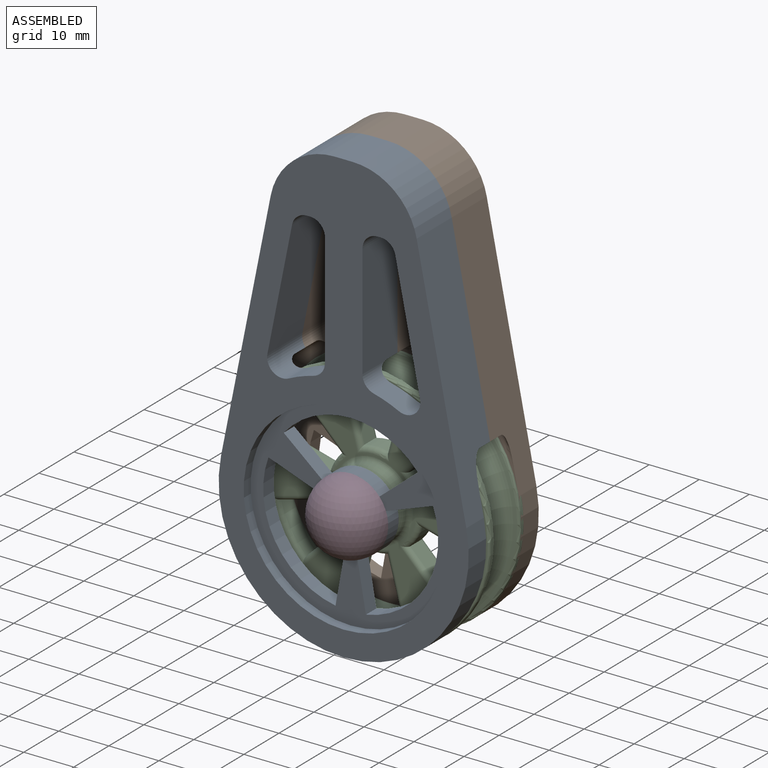
[diagram: assembled view]
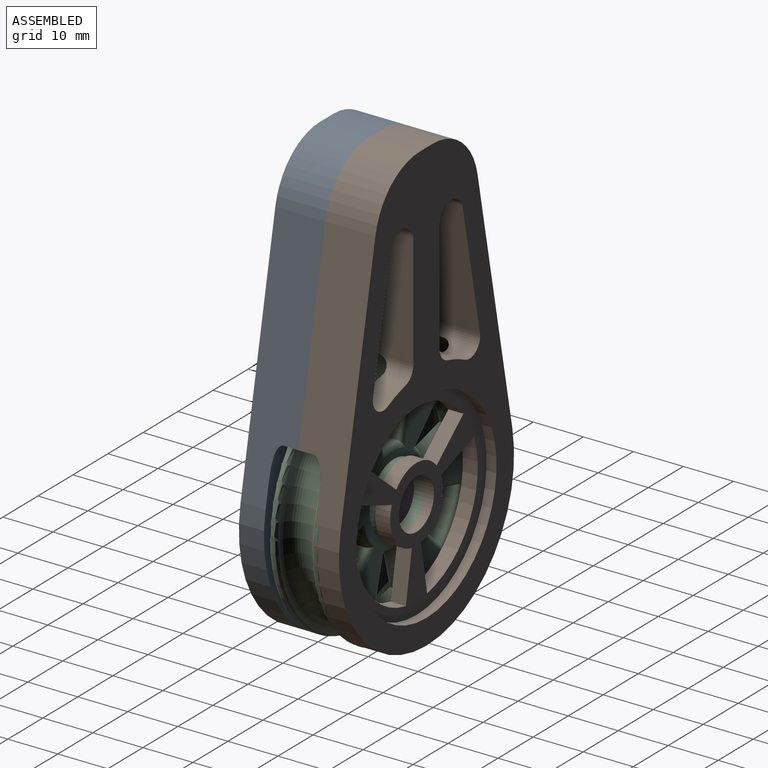
[diagram: assembled view, second angle]
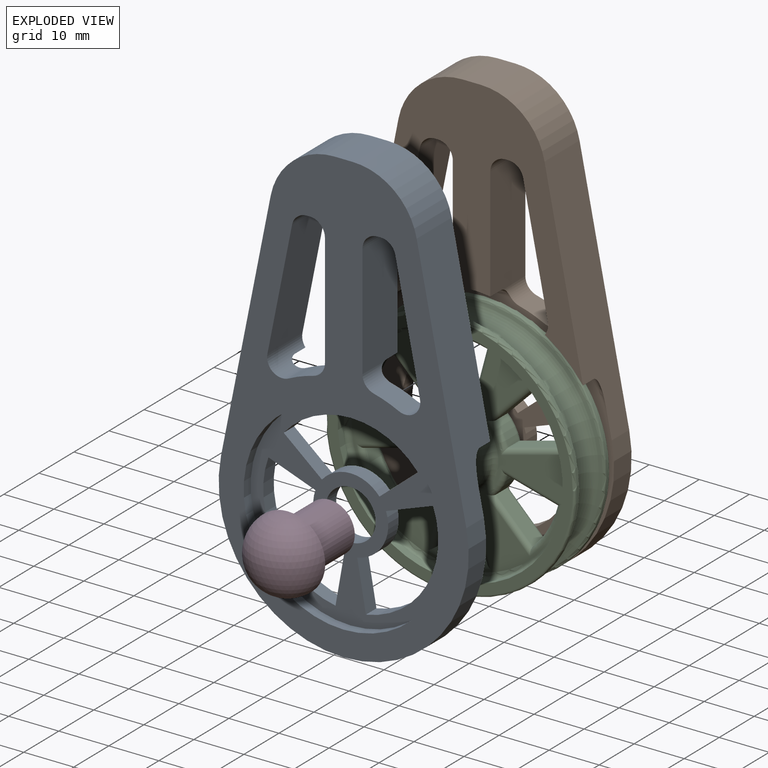
[diagram: exploded view]
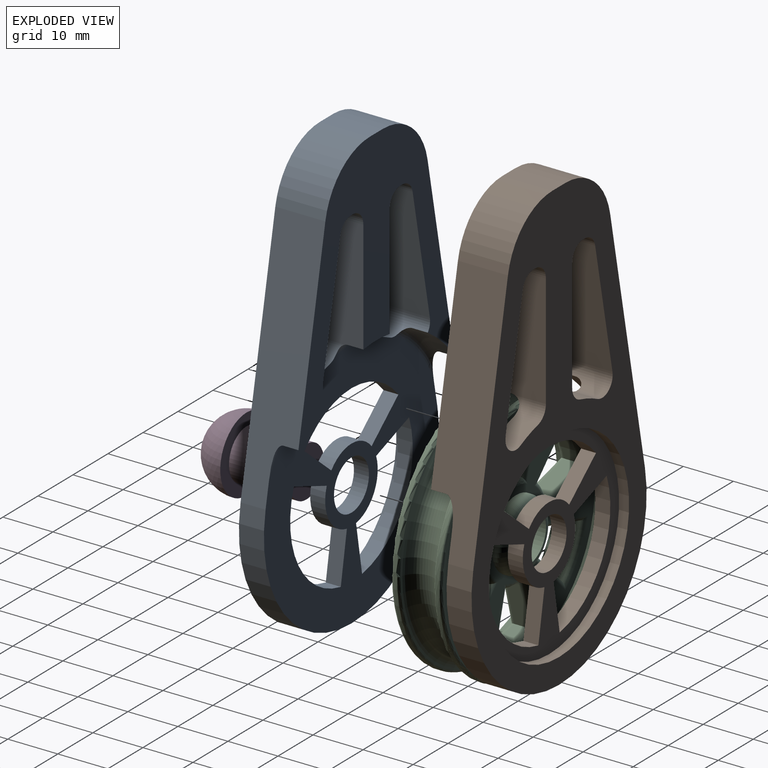
[diagram: exploded view, second angle]
ASSEMBLY  parts=4 mates=3
PART A: 46 faces, bbox 54.9x10x90 mm
  f0: plane 90x50mm, normal (0,-1,0), area 1625.2mm2, adj f7,f8,f9,f10,f11,f28,f29,f30
  f1: cylinder r=27.5mm len=7.5mm, axis (0,-1,0), area 22.6mm2, adj f3,f26,f33,f35
  f2: cylinder r=27.5mm len=7.62mm, axis (0,-1,0), area 31.5mm2, adj f4,f10,f26,f42
  f3: torus R=25.5mm, axis (0,-1,0), area 24.7mm2, adj f1,f5,f33,f35,f41,f45
  f4: torus R=25.5mm, axis (0,-1,0), area 38.8mm2, adj f2,f5,f10,f42
  f5: plane 50.5x50mm, normal (0,1,0), area 1254.3mm2, adj f3,f4,f7,f8,f10,f12,f13,f14
  f6: plane 40x40mm, normal (0,-1,0), area 523.6mm2, adj f11,f12,f13,f14,f15,f16,f17,f18
  f7: cylinder r=25mm len=50mm, axis (0,1,0), area 442mm2, adj f0,f5,f8,f10
  f8: plane 49.65x10mm, normal (0.98,0,0.2), area 451.3mm2, adj f0,f5,f7,f25,f26,f27,f28
  f9: plane 10x3.68mm, normal (0,0,1), area 36.8mm2, adj f0,f26,f28,f29
  f10: plane 49.65x10mm, normal (-0.98,0,0.2), area 451.3mm2, adj f0,f2,f4,f5,f7,f26,f29
  f11: cylinder r=20mm len=40mm, axis (0,-1,0), area 251.3mm2, adj f0,f6
  f12: plane 9.4x3.42mm, normal (0.34,0,-0.94), area 30mm2, adj f5,f6,f13,f15
  f13: cylinder r=7.5mm len=9.95mm, axis (0,-1,0), area 39.3mm2, adj f5,f6,f12,f14
  f14: plane 9.85x3mm, normal (0.98,0,0.17), area 30mm2, adj f5,f6,f13,f15
  f15: cylinder r=17.5mm len=23.22mm, axis (0,-1,0), area 91.6mm2, adj f5,f6,f12,f14
  f16: cylinder r=5mm len=10mm, axis (0,-1,0), area 94.2mm2, adj f5,f6
  f17: cylinder r=7.5mm len=11.49mm, axis (0,-1,0), area 39.3mm2, adj f5,f6,f18,f20
  f18: plane 7.66x6.43mm, normal (-0.64,0,0.77), area 30mm2, adj f5,f6,f17,f19
  f19: cylinder r=17.5mm len=26.81mm, axis (0,-1,0), area 91.6mm2, adj f5,f6,f18,f20
  f20: plane 7.66x6.43mm, normal (0.64,0,0.77), area 30mm2, adj f5,f6,f17,f19
  f21: plane 9.85x3mm, normal (-0.98,0,0.17), area 30mm2, adj f5,f6,f22,f24
  f22: cylinder r=7.5mm len=9.95mm, axis (0,-1,0), area 39.3mm2, adj f5,f6,f21,f23
  f23: plane 9.4x3.42mm, normal (-0.34,0,-0.94), area 30mm2, adj f5,f6,f22,f24
  f24: cylinder r=17.5mm len=23.22mm, axis (0,-1,0), area 91.6mm2, adj f5,f6,f21,f23
  f25: cylinder r=27.5mm len=7.62mm, axis (0,-1,0), area 31.5mm2, adj f8,f26,f27,f38
  f26: plane 48.87x44.54mm, normal (0,1,0), area 826mm2, adj f1,f2,f8,f9,f10,f25,f28,f29
  f27: torus R=25.5mm, axis (0,-1,0), area 38.8mm2, adj f5,f8,f25,f38
  f28: cylinder r=13mm len=12.75mm, axis (0,-1,0), area 178.6mm2, adj f0,f8,f9,f26
  f29: cylinder r=13mm len=12.75mm, axis (0,1,0), area 178.6mm2, adj f0,f9,f10,f26
  f30: cylinder r=25mm len=5mm, axis (0,-1,0), area 26.5mm2, adj f0,f5,f38,f41
  f31: plane 24.68x10mm, normal (-0.98,0,-0.2), area 251.7mm2, adj f0,f26,f38,f39
  f32: plane 10x0.63mm, normal (0,0,-1), area 6.3mm2, adj f0,f26,f39,f40
  f33: plane 22.66x10mm, normal (1,0,0), area 226.3mm2, adj f0,f1,f3,f26,f40,f41
  f34: cylinder r=25mm len=5mm, axis (0,-1,0), area 26.5mm2, adj f0,f5,f42,f45
  f35: plane 22.66x10mm, normal (-1,0,0), area 226.3mm2, adj f0,f1,f3,f26,f44,f45
  f36: plane 10x0.63mm, normal (0,0,-1), area 6.3mm2, adj f0,f26,f43,f44
  f37: plane 24.68x10mm, normal (0.98,0,-0.2), area 251.7mm2, adj f0,f26,f42,f43
  f38: cylinder r=3mm len=10mm, axis (0,-1,0), area 47.3mm2, adj f0,f5,f25,f26,f27,f30,f31
  f39: cylinder r=3mm len=10mm, axis (0,1,0), area 41.2mm2, adj f0,f26,f31,f32
  f40: cylinder r=3mm len=10mm, axis (0,-1,0), area 47.1mm2, adj f0,f26,f32,f33
  f41: cylinder r=3mm len=6.48mm, axis (0,-1,0), area 20.7mm2, adj f0,f3,f5,f30,f33
  f42: cylinder r=3mm len=10mm, axis (0,-1,0), area 47.3mm2, adj f0,f2,f4,f5,f26,f34,f37
  f43: cylinder r=3mm len=10mm, axis (0,-1,0), area 41.2mm2, adj f0,f26,f36,f37
  f44: cylinder r=3mm len=10mm, axis (0,-1,0), area 47.1mm2, adj f0,f26,f35,f36
  f45: cylinder r=3mm len=6.48mm, axis (0,-1,0), area 20.7mm2, adj f0,f3,f5,f34,f35
PART B: 46 faces, bbox 54.9x10x90 mm
  f0: plane 50.5x50mm, normal (0,-1,0), area 1254.3mm2, adj f5,f6,f7,f9,f10,f12,f15,f16
  f1: cylinder r=27.5mm len=7.62mm, axis (0,1,0), area 31.5mm2, adj f4,f5,f12,f42
  f2: cylinder r=27.5mm len=7.62mm, axis (0,1,0), area 31.5mm2, adj f4,f6,f10,f38
  f3: cylinder r=27.5mm len=7.5mm, axis (0,1,0), area 22.6mm2, adj f4,f7,f33,f35
  f4: plane 48.87x44.54mm, normal (0,-1,0), area 826mm2, adj f1,f2,f3,f10,f11,f12,f28,f29
  f5: torus R=25.5mm, axis (0,1,0), area 38.8mm2, adj f0,f1,f12,f42
  f6: torus R=25.5mm, axis (0,1,0), area 38.8mm2, adj f0,f2,f10,f38
  f7: torus R=25.5mm, axis (0,1,0), area 24.7mm2, adj f0,f3,f33,f35,f41,f45
  f8: plane 40x40mm, normal (0,1,0), area 523.6mm2, adj f14,f15,f16,f17,f18,f19,f20,f21
  f9: cylinder r=25mm len=50mm, axis (0,-1,0), area 442mm2, adj f0,f10,f12,f13
  f10: plane 49.65x10mm, normal (-0.98,0,0.2), area 451.3mm2, adj f0,f2,f4,f6,f9,f13,f29
  f11: plane 10x3.68mm, normal (0,0,1), area 36.8mm2, adj f4,f13,f28,f29
  f12: plane 49.65x10mm, normal (0.98,0,0.2), area 451.3mm2, adj f0,f1,f4,f5,f9,f13,f28
  f13: plane 90x50mm, normal (0,1,0), area 1625.2mm2, adj f9,f10,f11,f12,f14,f28,f29,f30
  f14: cylinder r=20mm len=40mm, axis (0,1,0), area 251.3mm2, adj f8,f13
  f15: plane 9.4x3.42mm, normal (0.34,0,-0.94), area 30mm2, adj f0,f8,f16,f18
  f16: cylinder r=17.5mm len=23.22mm, axis (0,1,0), area 91.6mm2, adj f0,f8,f15,f17
  f17: plane 9.85x3mm, normal (0.98,0,0.17), area 30mm2, adj f0,f8,f16,f18
  f18: cylinder r=7.5mm len=9.95mm, axis (0,1,0), area 39.3mm2, adj f0,f8,f15,f17
  f19: cylinder r=5mm len=10mm, axis (0,1,0), area 94.2mm2, adj f0,f8
  f20: cylinder r=7.5mm len=11.49mm, axis (0,1,0), area 39.3mm2, adj f0,f8,f21,f23
  f21: plane 7.66x6.43mm, normal (0.64,0,0.77), area 30mm2, adj f0,f8,f20,f22
  f22: cylinder r=17.5mm len=26.81mm, axis (0,1,0), area 91.6mm2, adj f0,f8,f21,f23
  f23: plane 7.66x6.43mm, normal (-0.64,0,0.77), area 30mm2, adj f0,f8,f20,f22
  f24: plane 9.85x3mm, normal (-0.98,0,0.17), area 30mm2, adj f0,f8,f25,f27
  f25: cylinder r=17.5mm len=23.22mm, axis (0,1,0), area 91.6mm2, adj f0,f8,f24,f26
  f26: plane 9.4x3.42mm, normal (-0.34,0,-0.94), area 30mm2, adj f0,f8,f25,f27
  f27: cylinder r=7.5mm len=9.95mm, axis (0,1,0), area 39.3mm2, adj f0,f8,f24,f26
  f28: cylinder r=13mm len=12.75mm, axis (0,1,0), area 178.6mm2, adj f4,f11,f12,f13
  f29: cylinder r=13mm len=12.75mm, axis (0,-1,0), area 178.6mm2, adj f4,f10,f11,f13
  f30: cylinder r=25mm len=5mm, axis (0,1,0), area 26.5mm2, adj f0,f13,f38,f41
  f31: plane 24.68x10mm, normal (0.98,0,-0.2), area 251.7mm2, adj f4,f13,f38,f39
  f32: plane 10x0.63mm, normal (0,0,-1), area 6.3mm2, adj f4,f13,f39,f40
  f33: plane 22.66x10.01mm, normal (-1,0,0), area 226.3mm2, adj f3,f4,f7,f13,f40,f41
  f34: cylinder r=25mm len=5mm, axis (0,1,0), area 26.5mm2, adj f0,f13,f42,f45
  f35: plane 22.66x10.01mm, normal (1,0,0), area 226.3mm2, adj f3,f4,f7,f13,f44,f45
  f36: plane 10x0.63mm, normal (0,0,-1), area 6.3mm2, adj f4,f13,f43,f44
  f37: plane 24.68x10mm, normal (-0.98,0,-0.2), area 251.7mm2, adj f4,f13,f42,f43
  f38: cylinder r=3mm len=10mm, axis (0,1,0), area 47.3mm2, adj f0,f2,f4,f6,f13,f30,f31
  f39: cylinder r=3mm len=10mm, axis (0,1,0), area 41.2mm2, adj f4,f13,f31,f32
  f40: cylinder r=3mm len=10mm, axis (0,1,0), area 47.1mm2, adj f4,f13,f32,f33
  f41: cylinder r=3mm len=6.48mm, axis (0,1,0), area 20.7mm2, adj f0,f7,f13,f30,f33
  f42: cylinder r=3mm len=10mm, axis (0,1,0), area 47.3mm2, adj f0,f1,f4,f5,f13,f34,f37
  f43: cylinder r=3mm len=10mm, axis (0,-1,0), area 41.2mm2, adj f4,f13,f36,f37
  f44: cylinder r=3mm len=10mm, axis (0,1,0), area 47.1mm2, adj f4,f13,f35,f36
  f45: cylinder r=3mm len=6.48mm, axis (0,1,0), area 20.7mm2, adj f0,f7,f13,f34,f35
PART C: 92 faces, bbox 54.1x10x54.1 mm
  f0: cylinder r=25mm len=50mm, axis (0,1,0), area 83.5mm2, adj f86,f89
  f1: cylinder r=25mm len=50mm, axis (0,1,0), area 83.5mm2, adj f87,f88
  f2: cylinder r=9.5mm len=4.92mm, axis (0,-1,0), area 14.9mm2, adj f3,f5,f39,f80
  f3: plane 10.14x3mm, normal (-0.97,0,0.26), area 31.5mm2, adj f2,f4,f37,f81
  f4: cylinder r=20mm len=10.35mm, axis (0,-1,0), area 31.4mm2, adj f3,f5,f36,f83
  f5: plane 10.14x3mm, normal (0.97,0,0.26), area 31.5mm2, adj f2,f4,f38,f82
  f6: cylinder r=9.5mm len=4.26mm, axis (0,-1,0), area 14.9mm2, adj f7,f9,f43,f60
  f7: plane 7.42x7.42mm, normal (0.71,0,0.71), area 31.5mm2, adj f6,f8,f41,f61
  f8: cylinder r=20mm len=8.97mm, axis (0,-1,0), area 31.4mm2, adj f7,f9,f40,f63
  f9: plane 10.14x3mm, normal (-0.26,0,-0.97), area 31.5mm2, adj f6,f8,f42,f62
  f10: cylinder r=9.5mm len=4.26mm, axis (0,-1,0), area 14.9mm2, adj f11,f13,f47,f64
  f11: plane 10.14x3mm, normal (-0.26,0,0.97), area 31.5mm2, adj f10,f12,f45,f65
  f12: cylinder r=20mm len=8.97mm, axis (0,-1,0), area 31.4mm2, adj f11,f13,f44,f67
  f13: plane 7.42x7.42mm, normal (0.71,0,-0.71), area 31.5mm2, adj f10,f12,f46,f66
  f14: cylinder r=9.5mm len=4.92mm, axis (0,-1,0), area 14.9mm2, adj f15,f17,f51,f68
  f15: plane 10.14x3mm, normal (0.97,0,-0.26), area 31.5mm2, adj f14,f16,f49,f69
  f16: cylinder r=20mm len=10.35mm, axis (0,-1,0), area 31.4mm2, adj f15,f17,f48,f71
  f17: plane 10.14x3mm, normal (-0.97,0,-0.26), area 31.5mm2, adj f14,f16,f50,f70
  f18: cylinder r=9.5mm len=4.26mm, axis (0,-1,0), area 14.9mm2, adj f19,f21,f55,f72
  f19: plane 10.14x3mm, normal (0.26,0,-0.97), area 31.5mm2, adj f18,f20,f53,f73
  f20: cylinder r=20mm len=8.97mm, axis (0,-1,0), area 31.4mm2, adj f19,f21,f52,f75
  f21: plane 7.42x7.42mm, normal (-0.71,0,0.71), area 31.5mm2, adj f18,f20,f54,f74
  f22: cylinder r=9.5mm len=4.26mm, axis (0,-1,0), area 14.9mm2, adj f23,f25,f59,f76
  f23: plane 7.42x7.42mm, normal (-0.71,0,-0.71), area 31.5mm2, adj f22,f24,f57,f77
  f24: cylinder r=20mm len=8.97mm, axis (0,-1,0), area 31.4mm2, adj f23,f25,f56,f79
  f25: plane 10.14x3mm, normal (0.26,0,0.97), area 31.5mm2, adj f22,f24,f58,f78
  f26: plane 43x43mm, normal (0,-1,0), area 521.8mm2, adj f60,f61,f62,f63,f64,f65,f66,f67
  f27: plane 49x49mm, normal (0,1,0), area 295.3mm2, adj f33,f88
  f28: plane 10.08x10.08mm, normal (0,-1,0), area 1.3mm2, adj f29,f91
  f29: cylinder r=5mm len=10mm, axis (0,1,0), area 314.2mm2, adj f28,f90
  f30: plane 49x49mm, normal (0,-1,0), area 295.3mm2, adj f31,f89
  f31: cylinder r=22.5mm len=45mm, axis (0,-1,0), area 212.1mm2, adj f30,f85
  f32: cylinder r=7mm len=14mm, axis (0,1,0), area 22mm2, adj f34,f90
  f33: cylinder r=22.5mm len=45mm, axis (0,1,0), area 353.4mm2, adj f27,f34
  f34: plane 45x45mm, normal (0,1,0), area 707.1mm2, adj f32,f33,f36,f37,f38,f39,f40,f41
  f35: torus R=25mm, axis (0,-1,0), area 1436.6mm2, adj f86,f87
  f36: torus R=21mm, axis (0,1,0), area 17.9mm2, adj f4,f34,f37,f38
  f37: cylinder r=1mm len=12.37mm, axis (-0.26,0,-0.97), area 17.6mm2, adj f3,f34,f36,f39
  f38: cylinder r=1mm len=12.37mm, axis (-0.26,0,0.97), area 17.6mm2, adj f5,f34,f36,f39
  f39: torus R=8.5mm, axis (0,1,0), area 8.7mm2, adj f2,f34,f37,f38
  f40: torus R=21mm, axis (0,1,0), area 17.9mm2, adj f8,f34,f41,f42
  f41: cylinder r=1mm len=9.57mm, axis (-0.71,0,0.71), area 17.6mm2, adj f7,f34,f40,f43
  f42: cylinder r=1mm len=12.37mm, axis (0.97,0,-0.26), area 17.6mm2, adj f9,f34,f40,f43
  f43: torus R=8.5mm, axis (0,1,0), area 8.7mm2, adj f6,f34,f41,f42
  f44: torus R=21mm, axis (0,1,0), area 17.9mm2, adj f12,f34,f45,f46
  f45: cylinder r=1mm len=12.37mm, axis (-0.97,0,-0.26), area 17.6mm2, adj f11,f34,f44,f47
  f46: cylinder r=1mm len=9.57mm, axis (0.71,0,0.71), area 17.6mm2, adj f13,f34,f44,f47
  f47: torus R=8.5mm, axis (0,1,0), area 8.7mm2, adj f10,f34,f45,f46
  f48: torus R=21mm, axis (0,1,0), area 17.9mm2, adj f16,f34,f49,f50
  f49: cylinder r=1mm len=12.37mm, axis (0.26,0,0.97), area 17.6mm2, adj f15,f34,f48,f51
  f50: cylinder r=1mm len=12.37mm, axis (0.26,0,-0.97), area 17.6mm2, adj f17,f34,f48,f51
  f51: torus R=8.5mm, axis (0,1,0), area 8.7mm2, adj f14,f34,f49,f50
  f52: torus R=21mm, axis (0,1,0), area 17.9mm2, adj f20,f34,f53,f54
  f53: cylinder r=1mm len=12.37mm, axis (0.97,0,0.26), area 17.6mm2, adj f19,f34,f52,f55
  f54: cylinder r=1mm len=9.57mm, axis (-0.71,0,-0.71), area 17.6mm2, adj f21,f34,f52,f55
  f55: torus R=8.5mm, axis (0,1,0), area 8.7mm2, adj f18,f34,f53,f54
  f56: torus R=21mm, axis (0,1,0), area 17.9mm2, adj f24,f34,f57,f58
  f57: cylinder r=1mm len=9.57mm, axis (0.71,0,-0.71), area 17.6mm2, adj f23,f34,f56,f59
  f58: cylinder r=1mm len=12.37mm, axis (-0.97,0,0.26), area 17.6mm2, adj f25,f34,f56,f59
  f59: torus R=8.5mm, axis (0,1,0), area 8.7mm2, adj f22,f34,f57,f58
  f60: torus R=8.5mm, axis (0,-1,0), area 8.7mm2, adj f6,f26,f61,f62
  f61: cylinder r=1mm len=9.57mm, axis (-0.71,0,0.71), area 17.6mm2, adj f7,f26,f60,f63
  f62: cylinder r=1mm len=12.37mm, axis (0.97,0,-0.26), area 17.6mm2, adj f9,f26,f60,f63
  f63: torus R=21mm, axis (0,-1,0), area 17.9mm2, adj f8,f26,f61,f62
  f64: torus R=8.5mm, axis (0,-1,0), area 8.7mm2, adj f10,f26,f65,f66
  f65: cylinder r=1mm len=12.37mm, axis (-0.97,0,-0.26), area 17.6mm2, adj f11,f26,f64,f67
  f66: cylinder r=1mm len=9.57mm, axis (0.71,0,0.71), area 17.6mm2, adj f13,f26,f64,f67
  f67: torus R=21mm, axis (0,-1,0), area 17.9mm2, adj f12,f26,f65,f66
  f68: torus R=8.5mm, axis (0,-1,0), area 8.7mm2, adj f14,f26,f69,f70
  f69: cylinder r=1mm len=12.37mm, axis (0.26,0,0.97), area 17.6mm2, adj f15,f26,f68,f71
  f70: cylinder r=1mm len=12.37mm, axis (0.26,0,-0.97), area 17.6mm2, adj f17,f26,f68,f71
  f71: torus R=21mm, axis (0,-1,0), area 17.9mm2, adj f16,f26,f69,f70
  f72: torus R=8.5mm, axis (0,-1,0), area 8.7mm2, adj f18,f26,f73,f74
  f73: cylinder r=1mm len=12.37mm, axis (0.97,0,0.26), area 17.6mm2, adj f19,f26,f72,f75
  f74: cylinder r=1mm len=9.57mm, axis (-0.71,0,-0.71), area 17.6mm2, adj f21,f26,f72,f75
  f75: torus R=21mm, axis (0,-1,0), area 17.9mm2, adj f20,f26,f73,f74
  f76: torus R=8.5mm, axis (0,-1,0), area 8.7mm2, adj f22,f26,f77,f78
  f77: cylinder r=1mm len=9.57mm, axis (0.71,0,-0.71), area 17.6mm2, adj f23,f26,f76,f79
  f78: cylinder r=1mm len=12.37mm, axis (-0.97,0,0.26), area 17.6mm2, adj f25,f26,f76,f79
  f79: torus R=21mm, axis (0,-1,0), area 17.9mm2, adj f24,f26,f77,f78
  f80: torus R=8.5mm, axis (0,-1,0), area 8.7mm2, adj f2,f26,f81,f82
  f81: cylinder r=1mm len=12.37mm, axis (-0.26,0,-0.97), area 17.6mm2, adj f3,f26,f80,f83
  f82: cylinder r=1mm len=12.37mm, axis (-0.26,0,0.97), area 17.6mm2, adj f5,f26,f80,f83
  f83: torus R=21mm, axis (0,-1,0), area 17.9mm2, adj f4,f26,f81,f82
  f84: torus R=8mm, axis (0,-1,0), area 65.3mm2, adj f26,f91
  f85: torus R=21.5mm, axis (0,-1,0), area 218.5mm2, adj f26,f31
  f86: torus R=24.5mm, axis (0,-1,0), area 112.8mm2, adj f0,f35
  f87: torus R=24.5mm, axis (0,1,0), area 112.8mm2, adj f1,f35
  f88: torus R=24.5mm, axis (0,-1,0), area 122.5mm2, adj f1,f27
  f89: torus R=24.5mm, axis (0,-1,0), area 122.5mm2, adj f0,f30
  f90: torus R=5mm, axis (0,-1,0), area 123.8mm2, adj f29,f32
  f91: torus R=5.04mm, axis (0,1,0), area 109.9mm2, adj f28,f84
PART D: 4 faces, bbox 15x19.5x15 mm
  f0: cylinder r=5mm len=12mm, axis (0,1,0), area 377mm2, adj f1,f2
  f1: plane 10x10mm, normal (0,1,0), area 78.5mm2, adj f0
  f2: plane 15x15mm, normal (0,1,0), area 98.2mm2, adj f0,f3
  f3: sphere r=7.5mm, area 353.4mm2, adj f2
PLACE A t=(-36.2,32.35,17.6)mm
PLACE B t=(-36.2,32.35,17.6)mm
PLACE C rot(axis=(0,1,0),180deg) t=(-36.2,38.35,17.6)mm
PLACE D t=(-36.2,41.37,17.6)mm
MATE slider D.f0 <-> A.f16  axis (0,1,0) through (-36.2,29.37,17.6)mm
MATE fastened A.f26 <-> B.f4  axis (0,1,0) through (-58.47,37.35,33.73)mm
MATE revolute C.f29 <-> A.f16  axis (0,1,0) through (-36.2,38.35,17.6)mm
